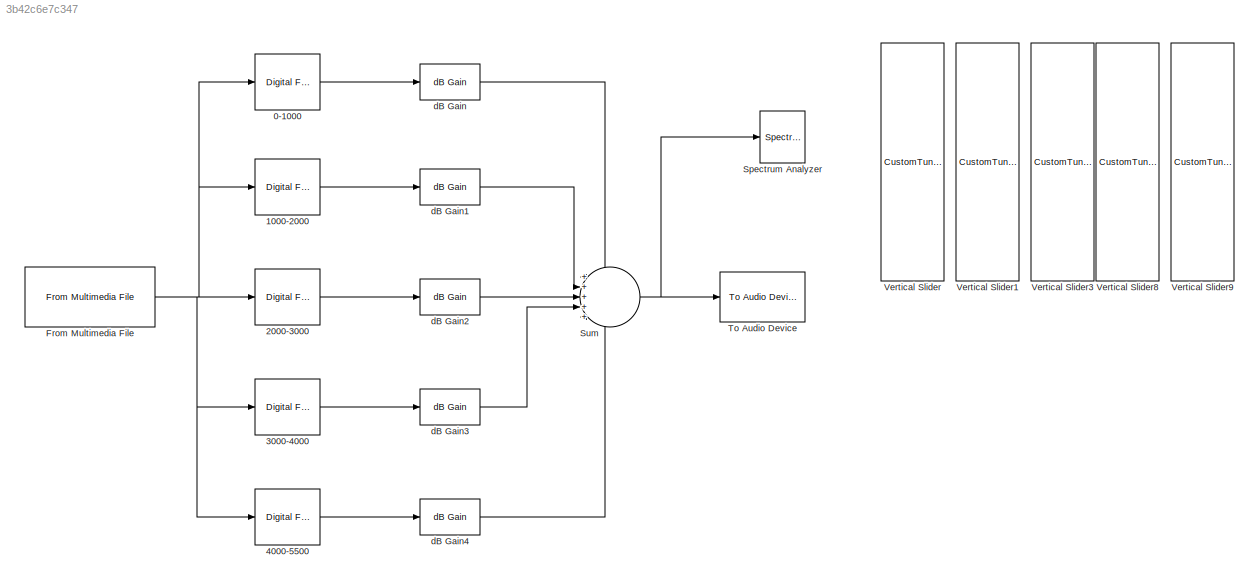
MODEL slx_3b42c6e7c347
KIND model
CONFIG AbsTol = auto
CONFIG EnableMultiTasking = on
CONFIG FixedStep = auto
CONFIG MaxStep = auto
CONFIG MinStep = auto
CONFIG RelTol = 1e-3
CONFIG SampleTimeConstraint = Unconstrained
CONFIG SolverName = VariableStepAuto
CONFIG StartTime = 0.0
CONFIG StopTime = 5
BLOCK [Reference] 0-1000  REF=dsparch4/Digital
Filter Design
  SourceBlock = dsparch4/Digital\nFilter Design
  SourceType = Digital Filter Design
  UserDataPersistent = on
BLOCK [Reference] 1000-2000  REF=dsparch4/Digital
Filter Design
  SourceBlock = dsparch4/Digital\nFilter Design
  SourceType = Digital Filter Design
  UserDataPersistent = on
BLOCK [Reference] 2000-3000  REF=dsparch4/Digital
Filter Design
  SourceBlock = dsparch4/Digital\nFilter Design
  SourceType = Digital Filter Design
  UserDataPersistent = on
BLOCK [Reference] 3000-4000  REF=dsparch4/Digital
Filter Design
  SourceBlock = dsparch4/Digital\nFilter Design
  SourceType = Digital Filter Design
  UserDataPersistent = on
BLOCK [Reference] 4000-5500  REF=dsparch4/Digital
Filter Design
  SourceBlock = dsparch4/Digital\nFilter Design
  SourceType = Digital Filter Design
  UserDataPersistent = on
BLOCK [Reference] From Multimedia File  REF=dspvision/From Multimedia File
  SourceBlock = dspvision/From Multimedia File
  SourceType = From Multimedia File
BLOCK [SpectrumAnalyzer] Spectrum Analyzer
  ScopeSpecificationString = spbscopes.SpectrumAnalyzerBlockCfg('CurrentConfiguration', extmgr.ConfigurationSet(extmgr.Configuration('Core','General UI',true,'FigureColor',[1 1 1]),extmgr.Configuration('Core','Source UI',true),extmgr.Configuration('Sources','WiredSimulink',true),extmgr.Configuration('Visuals','Spectrum',true,'AxesProperties',struct('Color',{[1 1 1],[1 1 1]},'XColor',{[0 0 0],[0 0 0]},'YColor',{[0 0 0],[0 0 0]...<+1629ch>
BLOCK [Sum] Sum
  Inputs = +++++
BLOCK [Reference] To Audio Device  REF=dspobslib/To Audio
Device
  SourceBlock = dspobslib/To Audio\nDevice
  SourceType = To Audio Device
BLOCK [CustomTuningWebBlock] Vertical Slider
  Configuration = {"components":[{"name":"LinearScaleComponent","settings":{"bounds":{"max":50,"min":-50,"tickInterval":"auto"},"internalTickHeightScaleFactor":0.5,"labelColor":[255,255,200],"labelFont":{"font":"Arial","fontSize":12},"labelOffset":0.05,"labelTransparency":1,"needleImage":{"size":[596,842],"src":"data:image\/svg+xml;base64,PD94bWwgdmVyc2lvbj0iMS4wIiBlbmNvZGluZz0idXRmLTgiPz4NCjwhLS0gR2VuZXJhdG9yOiBBZ...<+5474ch>  <repeated x5 — deduplicated; at blocks: Vertical Slider, Vertical Slider1, Vertical Slider3, Vertical Slider8, Vertical Slider9>
  LabelPosition = Hide
  ShowInitialText = on
BLOCK [CustomTuningWebBlock] Vertical Slider1
  LabelPosition = Hide
  ShowInitialText = on
BLOCK [CustomTuningWebBlock] Vertical Slider3
  LabelPosition = Hide
  ShowInitialText = on
BLOCK [CustomTuningWebBlock] Vertical Slider8
  LabelPosition = Hide
  ShowInitialText = on
BLOCK [CustomTuningWebBlock] Vertical Slider9
  LabelPosition = Hide
  ShowInitialText = on
BLOCK [Reference] dB Gain  REF=dspmathops/dB Gain
  SourceBlock = dspmathops/dB Gain
  SourceType = dB Gain
BLOCK [Reference] dB Gain1  REF=dspmathops/dB Gain
  SourceBlock = dspmathops/dB Gain
  SourceType = dB Gain
BLOCK [Reference] dB Gain2  REF=dspmathops/dB Gain
  SourceBlock = dspmathops/dB Gain
  SourceType = dB Gain
BLOCK [Reference] dB Gain3  REF=dspmathops/dB Gain
  SourceBlock = dspmathops/dB Gain
  SourceType = dB Gain
BLOCK [Reference] dB Gain4  REF=dspmathops/dB Gain
  SourceBlock = dspmathops/dB Gain
  SourceType = dB Gain
LINE 0-1000:1 -> dB Gain:1
LINE 1000-2000:1 -> dB Gain1:1
LINE 2000-3000:1 -> dB Gain2:1
LINE 3000-4000:1 -> dB Gain3:1
LINE 4000-5500:1 -> dB Gain4:1
NET From Multimedia File:1 -> 0-1000:1, 1000-2000:1, 2000-3000:1, 3000-4000:1, 4000-5500:1
NET Sum:1 -> Spectrum Analyzer:1, To Audio Device:1
LINE dB Gain1:1 -> Sum:2
LINE dB Gain2:1 -> Sum:3
LINE dB Gain3:1 -> Sum:4
LINE dB Gain4:1 -> Sum:5
LINE dB Gain:1 -> Sum:1
note: NET lines group one-source signal fan-out (src -> all destinations, sorted); 1:1 wires keep LINE
